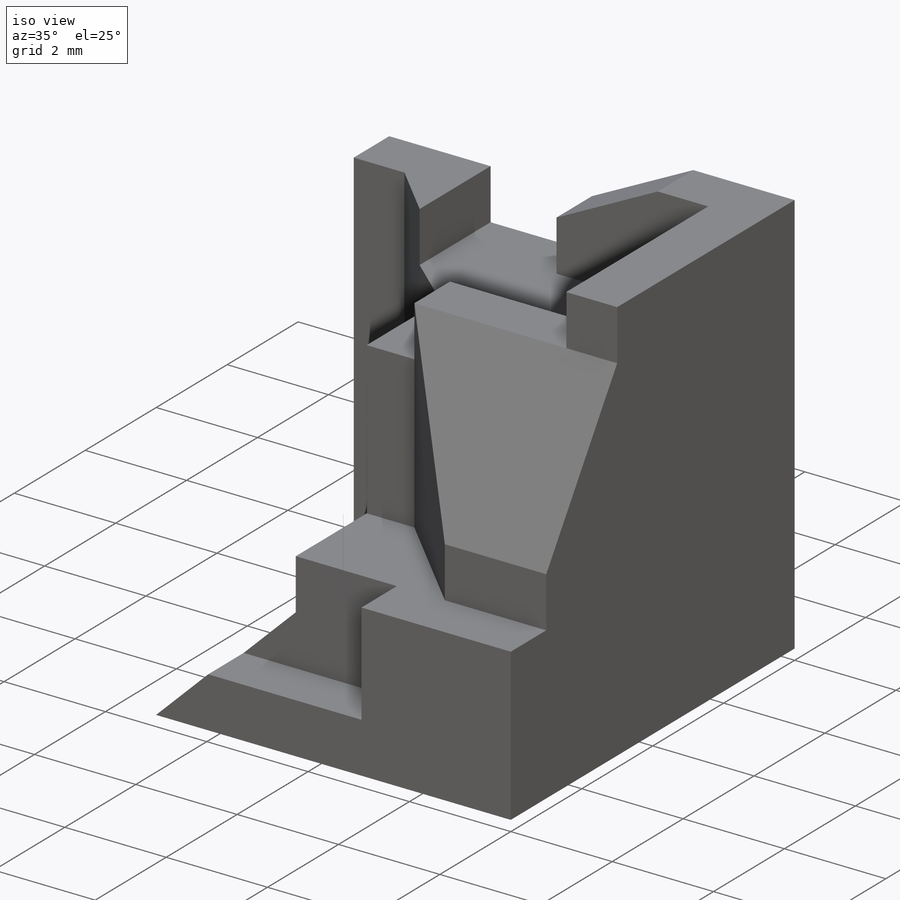
[diagram: iso view]
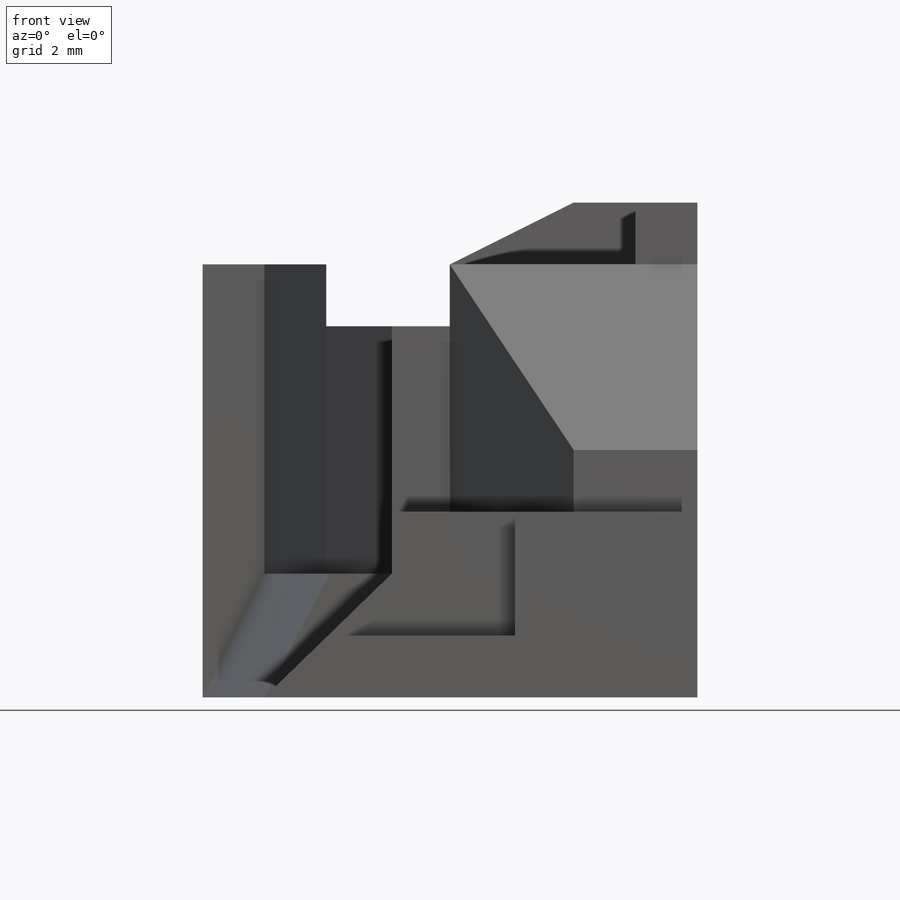
[diagram: front view]
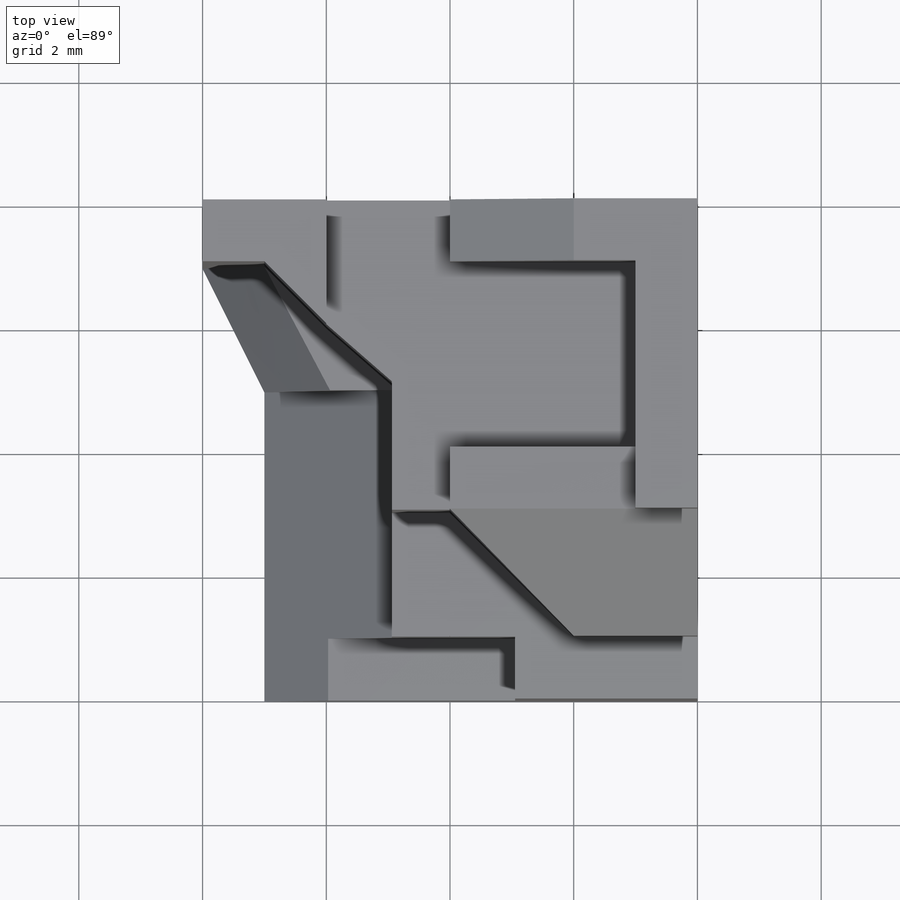
[diagram: top view]
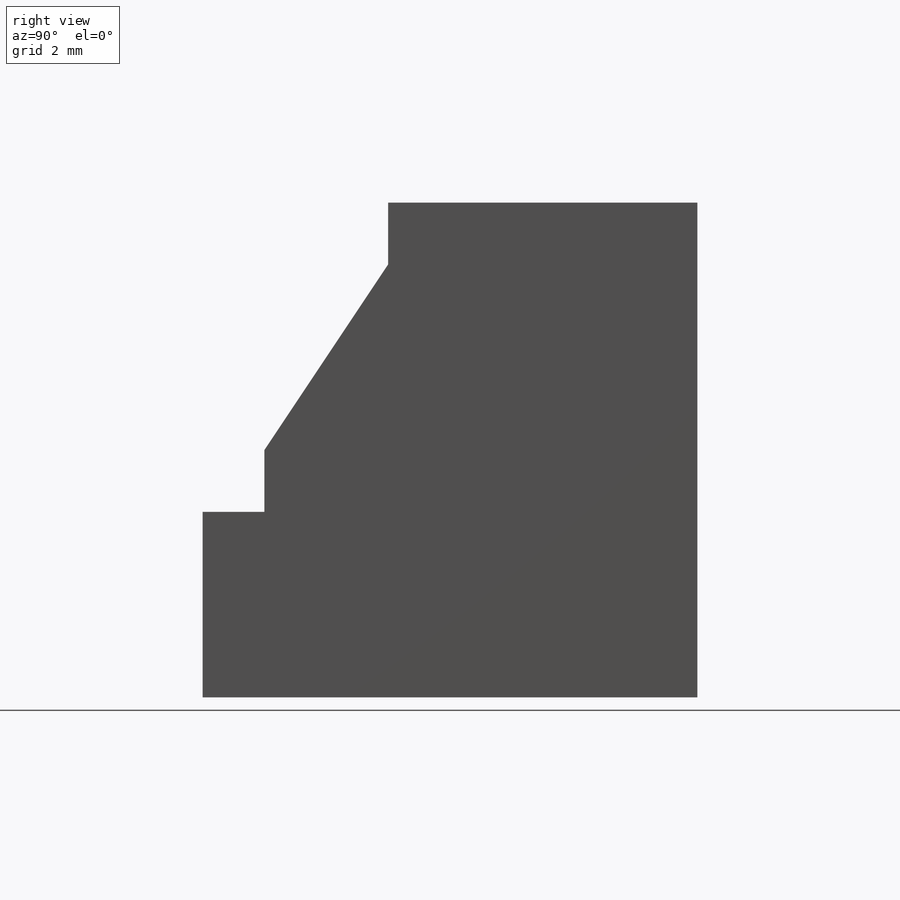
[diagram: right view]
SOLIDWORKS PART (.sldprt)
format: sldprt  version: not decoded by parser v0  size: 373,248 bytes
history: native  units: mm
features: sketch x14, cut_extrude x8, extrude x6, material x1 (+13 scaffold rows collapsed)
feature tree (42):
  scaffold x13  (default folders/planes/origin — collapsed)
  material  "Material <not specified>"
  sketch  "Sketch2"  dims[D1=8.0mm D2=7.0mm D3=8.0mm D4=2.0mm D5=2.0mm D6=2.0mm D7=1.0mm D8=1.0mm]
  extrude  "Boss-Extrude1"  Depth=1mm
  sketch  "Sketch3"  dims[D1=1.0mm]
  extrude  "Boss-Extrude2"  Depth=4mm
  sketch  "Sketch4"  dims[D1=1.0mm]
  cut_extrude  "Cut-Extrude1"  Depth=5mm
  sketch  "Sketch5"
  cut_extrude  "Cut-Extrude2"  Depth=5mm
  sketch  "Sketch6"
  extrude  "Boss-Extrude3"  Depth=2mm
  sketch  "Sketch7"
  extrude  "Boss-Extrude4"  Depth=1mm
  sketch  "Sketch8"  dims[D1=4.0mm]
  extrude  "Boss-Extrude5"  Depth=2mm
  sketch  "Sketch9"  dims[D1=3.0mm]
  cut_extrude  "Cut-Extrude3"  Depth=12mm
  sketch  "Sketch10"  dims[D1=3.0mm D2=3.0mm]
  extrude  "Boss-Extrude6"  Depth=7mm
  sketch  "Sketch11"
  cut_extrude  "Cut-Extrude6"  Depth=3mm
  sketch  "Sketch12"
  cut_extrude  "Cut-Extrude7"  Depth=2mm
  sketch  "Sketch13"
  cut_extrude  "Cut-Extrude8"  Depth=1mm
  sketch  "3DSketch1"  dims[D1=2.0mm D2=2.0mm]
  cut_extrude  "Cut-Extrude9"  Depth=2mm
  sketch  "3DSketch2"  dims[D1=1.0mm D2=1.0mm]
  cut_extrude  "Cut-Extrude10"  Depth=7mm
decode coverage: 22 of 28 modeling features carry decoded parameters
note: suppression state not decoded; provenance and decode notes live in map.json
